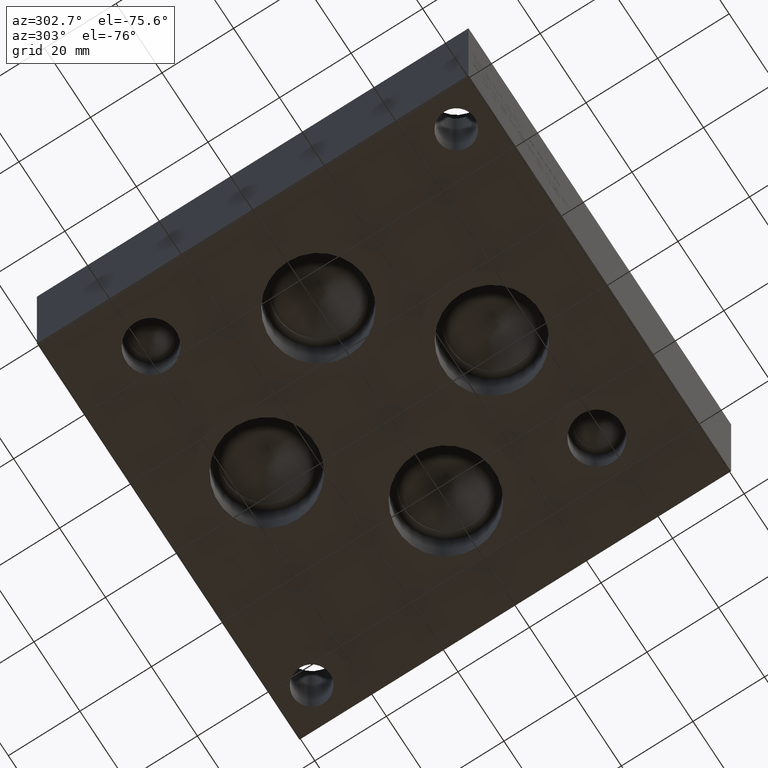
[diagram: clean part render]
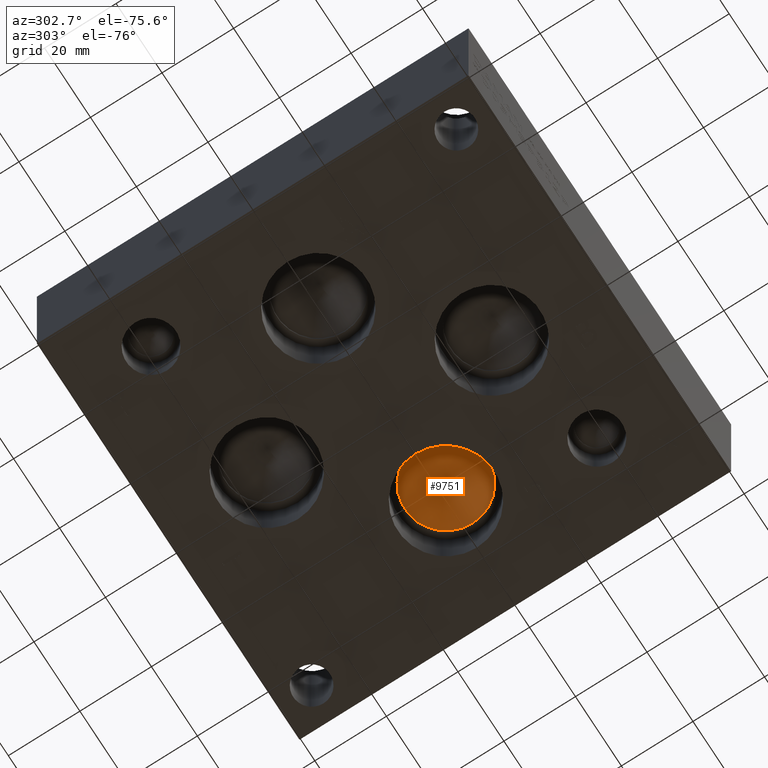
[diagram: same view with one face highlighted and labeled with its STEP entity id]
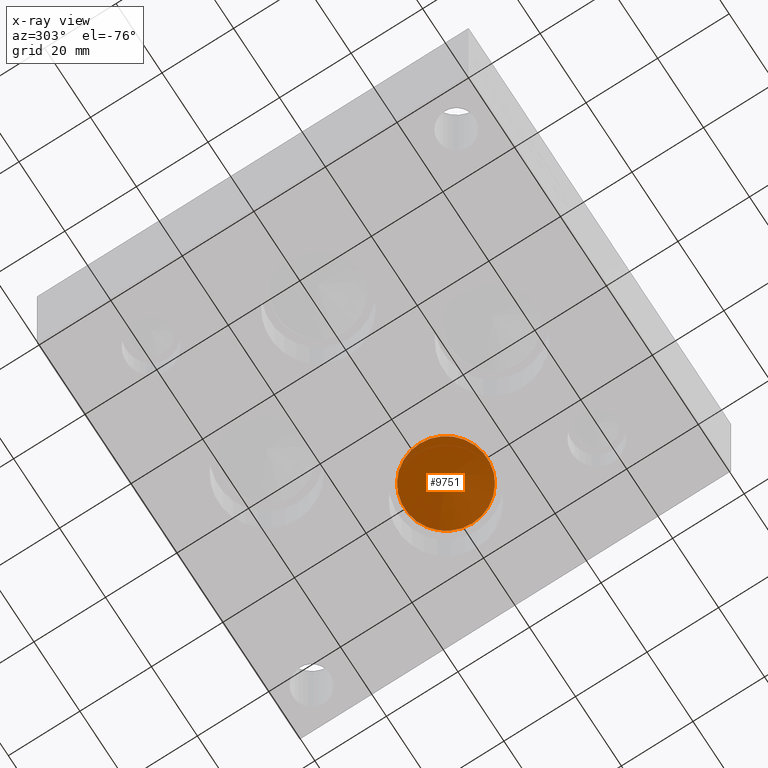
[diagram: x-ray of the same camera — body ghosted, the highlighted face saturated]
A machine part, auxiliary view. The second image highlights one B-rep face of the part: STEP entity #9751.
The next image is the same camera in x-ray: the body ghosted, the highlighted face saturated — about 0% of this face is hidden behind the body in this view.
In plain terms, the highlighted conical surface has half-angle 60 deg.
Its self-contained STEP definition (entity closure, byte-faithful):
#48=CONICAL_SURFACE('',#10172,5.7531,1.0471975511966);
#94=CIRCLE('',#10173,11.5062);
#95=CIRCLE('',#10174,11.5062);
#1046=FACE_OUTER_BOUND('',#1591,.T.);
#1591=EDGE_LOOP('',(#8320,#8321,#8322,#8323));
#2609=LINE('',#16318,#3598);
#3598=VECTOR('',#11966,5.7531);
#4463=VERTEX_POINT('',#16314);
#4464=VERTEX_POINT('',#16315);
#4465=VERTEX_POINT('',#16317);
#5775=EDGE_CURVE('',#4463,#4464,#94,.T.);
#5776=EDGE_CURVE('',#4464,#4465,#2609,.T.);
#5777=EDGE_CURVE('',#4464,#4463,#95,.T.);
#8320=ORIENTED_EDGE('',*,*,#5775,.T.);
#8321=ORIENTED_EDGE('',*,*,#5776,.T.);
#8322=ORIENTED_EDGE('',*,*,#5776,.F.);
#8323=ORIENTED_EDGE('',*,*,#5777,.T.);
#9751=ADVANCED_FACE('',(#1046),#48,.F.);
#10172=AXIS2_PLACEMENT_3D('',#16313,#11962,#11963);
#10173=AXIS2_PLACEMENT_3D('',#16316,#11964,#11965);
#10174=AXIS2_PLACEMENT_3D('',#16319,#11967,#11968);
#11962=DIRECTION('center_axis',(0.,0.,-1.));
#11963=DIRECTION('ref_axis',(1.,0.,0.));
#11964=DIRECTION('center_axis',(0.,0.,-1.));
#11965=DIRECTION('ref_axis',(1.,0.,0.));
#11966=DIRECTION('',(0.866025403784439,-1.06057523872491E-16,0.5));
#11967=DIRECTION('center_axis',(0.,0.,-1.));
#11968=DIRECTION('ref_axis',(1.,0.,0.));
#16313=CARTESIAN_POINT('Origin',(84.1248,60.325,19.8354638336748));
#16314=CARTESIAN_POINT('',(95.631,60.325,16.51391));
#16315=CARTESIAN_POINT('',(72.6186,60.325,16.51391));
#16316=CARTESIAN_POINT('Origin',(84.1248,60.325,16.51391));
#16317=CARTESIAN_POINT('',(84.1248,60.325,23.1570176673497));
#16318=CARTESIAN_POINT('',(78.3717,60.325,19.8354638336748));
#16319=CARTESIAN_POINT('Origin',(84.1248,60.325,16.51391));